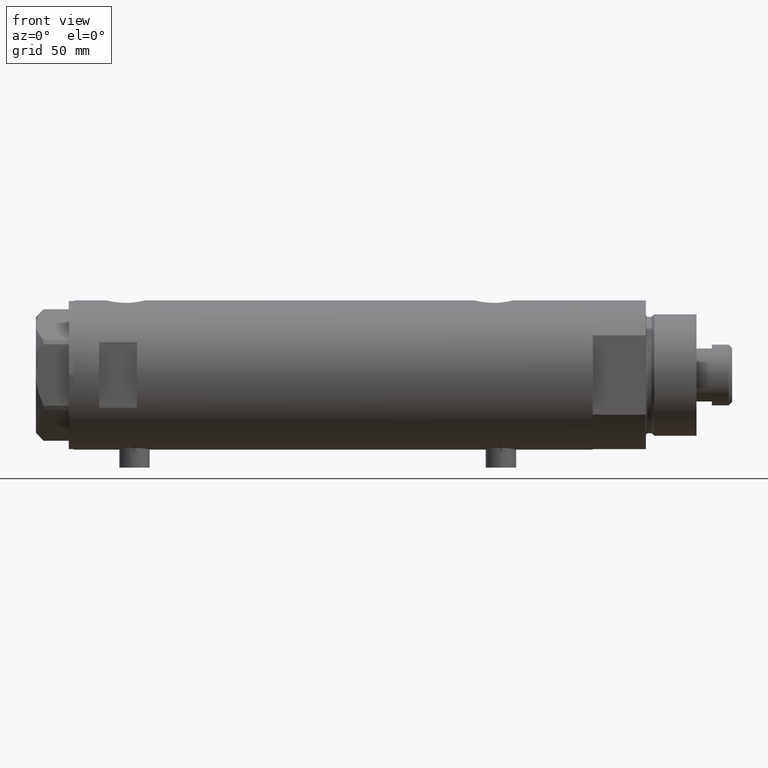
[diagram: clean part render]
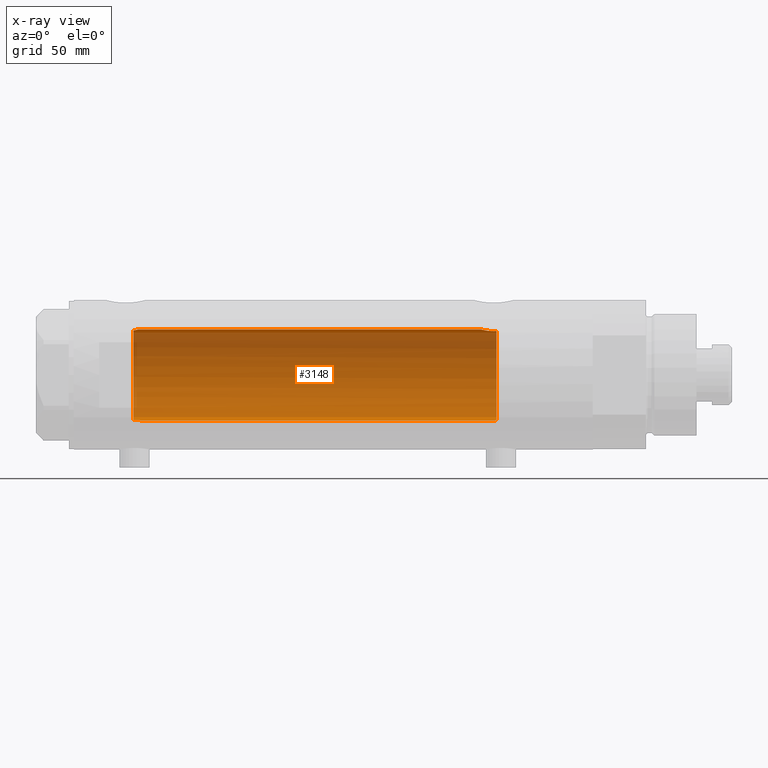
[diagram: x-ray — body ghosted, one internal face saturated and labeled with its STEP entity id]
A machine part, front view, then the same camera in x-ray: the body is ghosted and one INTERNAL B-rep face — a face not visible from any outside direction — is saturated and labeled: STEP entity #3148.
In plain terms, the highlighted cylindrical surface (partial cylindrical patch) has radius 18 mm, axis along (1, 0, -0).
Its self-contained STEP definition (entity closure, byte-faithful):
#122 = CARTESIAN_POINT ( 'NONE',  ( -18.00000000000000000, 0.000000000000000000, 102.5999999999999943 ) ) ;
#134 = ORIENTED_EDGE ( 'NONE', *, *, #2261, .F. ) ;
#192 = VECTOR ( 'NONE', #3447, 1000.000000000000000 ) ;
#230 = VERTEX_POINT ( 'NONE', #3043 ) ;
#302 = CARTESIAN_POINT ( 'NONE',  ( 17.41328271218090151, 4.558641711475907243, -61.69087254718660773 ) ) ;
#365 = CARTESIAN_POINT ( 'NONE',  ( 0.000000000000000000, 0.000000000000000000, 102.5999999999999943 ) ) ;
#612 = CARTESIAN_POINT ( 'NONE',  ( 18.00000000000000355, 0.1844036484100908535, -58.53499999999998238 ) ) ;
#626 = B_SPLINE_CURVE_WITH_KNOTS ( 'NONE', 3,
 ( #1143, #1478, #4745, #4073, #706, #4432, #3297, #2986, #2626, #4456, #3688, #3365, #2944, #3716, #4101, #775 ),
 .UNSPECIFIED., .F., .F.,
 ( 4, 2, 2, 2, 2, 2, 2, 4 ),
 ( 0.007825597788866827872, 0.008929372539743339957, 0.009481259915181604672, 0.01003314729061987112, 0.01058503466605813584, 0.01113692204149640055, 0.01168880941693466527, 0.01224069679237292999 ),
 .UNSPECIFIED. ) ;
#666 = CARTESIAN_POINT ( 'NONE',  ( 17.63589737371338373, 3.604488512479874007, -60.12742655266249869 ) ) ;
#688 = VERTEX_POINT ( 'NONE', #2546 ) ;
#692 = CARTESIAN_POINT ( 'NONE',  ( -17.98949107760678601, 0.6899666364176300082, -63.87303358989281321 ) ) ;
#706 = CARTESIAN_POINT ( 'NONE',  ( -17.94624864476198312, 1.397590066628585426, 76.51900161024215663 ) ) ;
#721 = CARTESIAN_POINT ( 'NONE',  ( 17.95540531162506426, 1.279032093992337193, 77.40250861430335760 ) ) ;
#725 = EDGE_LOOP ( 'NONE', ( #2578, #134, #2812, #2547, #1981, #4213, #3104, #1496 ) ) ;
#769 = EDGE_CURVE ( 'NONE', #1692, #4480, #3833, .T. ) ;
#775 = CARTESIAN_POINT ( 'NONE',  ( -17.83255450012700649, 2.449489742783172996, 79.10000000000000853 ) ) ;
#819 = VERTEX_POINT ( 'NONE', #3386 ) ;
#911 = VERTEX_POINT ( 'NONE', #2749 ) ;
#945 = DIRECTION ( 'NONE',  ( 0.000000000000000000, 0.000000000000000000, 1.000000000000000000 ) ) ;
#964 = AXIS2_PLACEMENT_3D ( 'NONE', #3946, #1348, #1730 ) ;
#966 = DIRECTION ( 'NONE',  ( 1.000000000000000000, 0.000000000000000000, 0.000000000000000000 ) ) ;
#983 = CARTESIAN_POINT ( 'NONE',  ( 18.00000000000000000, 0.000000000000000000, 77.23499999999998522 ) ) ;
#1004 = CARTESIAN_POINT ( 'NONE',  ( 17.98587882862718246, 0.7362002489460840460, -58.58746722239204985 ) ) ;
#1012 = CARTESIAN_POINT ( 'NONE',  ( -17.90642342847950275, 1.833030277983139333, -64.59999999999931219 ) ) ;
#1050 = CARTESIAN_POINT ( 'NONE',  ( -17.96336505771914460, 1.158437137172621645, -64.07804627005675968 ) ) ;
#1075 = EDGE_CURVE ( 'NONE', #2912, #1692, #2341, .T. ) ;
#1084 = CARTESIAN_POINT ( 'NONE',  ( 17.68814035493779002, 3.348626323852654796, 78.55183600219629625 ) ) ;
#1097 = B_SPLINE_CURVE_WITH_KNOTS ( 'NONE', 3,
 ( #4734, #1417, #2904, #4367, #1050, #692, #3653, #3747 ),
 .UNSPECIFIED., .F., .F.,
 ( 4, 2, 2, 4 ),
 ( 0.01360098575045320946, 0.01411306367951526558, 0.01462514160857732344, 0.01564929746670143743 ),
 .UNSPECIFIED. ) ;
#1143 = CARTESIAN_POINT ( 'NONE',  ( -18.00000000000000000, 3.061617490159550962E-16, 76.09999999999999432 ) ) ;
#1348 = DIRECTION ( 'NONE',  ( 0.000000000000000000, 0.000000000000000000, -1.000000000000000000 ) ) ;
#1376 = CARTESIAN_POINT ( 'NONE',  ( 17.34085862114804044, 4.826483754267692383, -62.76145238513610991 ) ) ;
#1399 = CARTESIAN_POINT ( 'NONE',  ( 17.99716691696285764, 0.3685254503903822032, -58.54545042928658916 ) ) ;
#1417 = CARTESIAN_POINT ( 'NONE',  ( -17.91832049203241439, 1.716810780632715083, -64.47468596615661340 ) ) ;
#1448 = CARTESIAN_POINT ( 'NONE',  ( 17.63704841537100521, 3.603891093161686321, 78.81145343596539021 ) ) ;
#1478 = CARTESIAN_POINT ( 'NONE',  ( -18.00000000000000711, 0.3684436523298857957, 76.10000000000000853 ) ) ;
#1496 = ORIENTED_EDGE ( 'NONE', *, *, #769, .F. ) ;
#1502 = DIRECTION ( 'NONE',  ( -1.000000000000000000, 0.000000000000000000, 0.000000000000000000 ) ) ;
#1692 = VERTEX_POINT ( 'NONE', #2941 ) ;
#1708 = CARTESIAN_POINT ( 'NONE',  ( 18.00000000000000355, 0.3728474842072360129, 77.23499999999999943 ) ) ;
#1728 = CARTESIAN_POINT ( 'NONE',  ( 17.97733715731491344, 0.9209699998971196955, -58.61935966604425374 ) ) ;
#1730 = DIRECTION ( 'NONE',  ( -1.000000000000000000, 0.000000000000000000, 0.000000000000000000 ) ) ;
#1784 = CARTESIAN_POINT ( 'NONE',  ( 17.32928165965088141, 4.867855194001447394, -63.31899018256648048 ) ) ;
#1791 = VERTEX_POINT ( 'NONE', #1012 ) ;
#1981 = ORIENTED_EDGE ( 'NONE', *, *, #2866, .T. ) ;
#2080 = CARTESIAN_POINT ( 'NONE',  ( 17.33118376015917050, 4.861110225087390546, -63.13112109378172931 ) ) ;
#2105 = CARTESIAN_POINT ( 'NONE',  ( 17.43128843254318028, 4.489613141718955092, -61.51700003713169451 ) ) ;
#2107 = CARTESIAN_POINT ( 'NONE',  ( 17.83158514913445103, 2.461498934476306744, 77.89965995681279765 ) ) ;
#2138 = CIRCLE ( 'NONE', #964, 18.00000000000000000 ) ;
#2193 = CYLINDRICAL_SURFACE ( 'NONE', #2924, 18.00000000000000000 ) ;
#2212 = EDGE_CURVE ( 'NONE', #1791, #4480, #2138, .T. ) ;
#2261 = EDGE_CURVE ( 'NONE', #911, #2912, #4672, .T. ) ;
#2341 = LINE ( 'NONE', #3818, #192 ) ;
#2441 = CARTESIAN_POINT ( 'NONE',  ( 17.61032289555864949, 3.726910670425183980, -60.26756985850230564 ) ) ;
#2491 = CARTESIAN_POINT ( 'NONE',  ( 17.53642083926970585, 4.065376572064633542, -60.70260027543616133 ) ) ;
#2517 = CARTESIAN_POINT ( 'NONE',  ( 17.98843015915092280, 0.7391836159806548512, 77.27731130524779246 ) ) ;
#2546 = CARTESIAN_POINT ( 'NONE',  ( -18.00000000000000000, 0.000000000000000000, -63.79999999999999716 ) ) ;
#2547 = ORIENTED_EDGE ( 'NONE', *, *, #4283, .F. ) ;
#2560 = FACE_OUTER_BOUND ( 'NONE', #725, .T. ) ;
#2570 = CARTESIAN_POINT ( 'NONE',  ( 17.76196254920472484, 2.921230608637953807, 78.20535341986153810 ) ) ;
#2578 = ORIENTED_EDGE ( 'NONE', *, *, #1075, .F. ) ;
#2626 = CARTESIAN_POINT ( 'NONE',  ( -17.87088460660653766, 2.153683778660669290, 77.31724841463827147 ) ) ;
#2749 = CARTESIAN_POINT ( 'NONE',  ( 17.58783030962033678, 3.829911878881830489, 79.10000000000000853 ) ) ;
#2807 = CARTESIAN_POINT ( 'NONE',  ( 18.00000000000000000, 5.958021437579254357E-16, -58.53499999999998238 ) ) ;
#2812 = ORIENTED_EDGE ( 'NONE', *, *, #2971, .T. ) ;
#2829 = CARTESIAN_POINT ( 'NONE',  ( 17.68656644271517209, 3.347025706529860756, -59.86453774950908979 ) ) ;
#2865 = CARTESIAN_POINT ( 'NONE',  ( 17.94167814235965253, 1.458276351914871150, 77.45504464479714102 ) ) ;
#2866 = EDGE_CURVE ( 'NONE', #819, #688, #4195, .T. ) ;
#2887 = CARTESIAN_POINT ( 'NONE',  ( 17.85293122918850628, 2.302201220737766452, 77.81031080804812916 ) ) ;
#2904 = CARTESIAN_POINT ( 'NONE',  ( -17.93028482699292780, 1.588885888720734663, -64.36224988169317385 ) ) ;
#2907 = CARTESIAN_POINT ( 'NONE',  ( 17.94405978035182869, 1.463580074031385347, -58.74553017623721729 ) ) ;
#2912 = VERTEX_POINT ( 'NONE', #3865 ) ;
#2924 = AXIS2_PLACEMENT_3D ( 'NONE', #365, #4081, #1502 ) ;
#2941 = CARTESIAN_POINT ( 'NONE',  ( 18.00000000000000000, 5.958021437579254357E-16, -58.53499999999998238 ) ) ;
#2944 = CARTESIAN_POINT ( 'NONE',  ( -17.82614870471583401, 2.495683684402662639, 78.36291490437702123 ) ) ;
#2971 = EDGE_CURVE ( 'NONE', #911, #230, #3375, .T. ) ;
#2986 = CARTESIAN_POINT ( 'NONE',  ( -17.88283752013080985, 2.053809615874002681, 77.16247768058087786 ) ) ;
#2992 = AXIS2_PLACEMENT_3D ( 'NONE', #4727, #945, #966 ) ;
#3043 = CARTESIAN_POINT ( 'NONE',  ( -17.83255450012700649, 2.449489742783172996, 79.10000000000000853 ) ) ;
#3104 = ORIENTED_EDGE ( 'NONE', *, *, #2212, .T. ) ;
#3148 = ADVANCED_FACE ( 'NONE', ( #2560 ), #2193, .F. ) ;
#3219 = VECTOR ( 'NONE', #4585, 1000.000000000000000 ) ;
#3297 = CARTESIAN_POINT ( 'NONE',  ( -17.90830209998921063, 1.818440982043824983, 76.87434744171716261 ) ) ;
#3365 = CARTESIAN_POINT ( 'NONE',  ( -17.82958311517957739, 2.471426257451372344, 78.18046645260449168 ) ) ;
#3375 = CIRCLE ( 'NONE', #2992, 18.00000000000000000 ) ;
#3386 = CARTESIAN_POINT ( 'NONE',  ( -18.00000000000000000, 3.061617490159550962E-16, 76.09999999999999432 ) ) ;
#3447 = DIRECTION ( 'NONE',  ( -0.000000000000000000, -0.000000000000000000, -1.000000000000000000 ) ) ;
#3554 = CARTESIAN_POINT ( 'NONE',  ( 17.37157951943346035, 4.714681855650494136, -64.59999999999999432 ) ) ;
#3558 = EDGE_CURVE ( 'NONE', #1791, #688, #1097, .T. ) ;
#3577 = CARTESIAN_POINT ( 'NONE',  ( 17.35631194664785681, 4.771042759406569189, -62.39667763205950024 ) ) ;
#3653 = CARTESIAN_POINT ( 'NONE',  ( -17.99999999999999645, 0.3463326441765492425, -63.79999999999998295 ) ) ;
#3688 = CARTESIAN_POINT ( 'NONE',  ( -17.84158955897572696, 2.383204526717101146, 77.82263758307628621 ) ) ;
#3716 = CARTESIAN_POINT ( 'NONE',  ( -17.82508408272472877, 2.503276281002373427, 78.73510831259082465 ) ) ;
#3747 = CARTESIAN_POINT ( 'NONE',  ( -18.00000000000000000, 0.000000000000000000, -63.79999999999999716 ) ) ;
#3818 = CARTESIAN_POINT ( 'NONE',  ( 18.00000000000000000, 2.204364238465235428E-15, 102.5999999999999943 ) ) ;
#3833 = B_SPLINE_CURVE_WITH_KNOTS ( 'NONE', 3,
 ( #2807, #612, #1399, #1004, #1728, #2907, #4323, #3987, #4346, #4297, #4660, #3917, #2829, #666, #2441, #2491, #3943, #2105, #302, #3964, #3577, #1376, #2080, #1784, #4689, #4369, #3554 ),
 .UNSPECIFIED., .F., .F.,
 ( 4, 2, 2, 2, 2, 2, 2, 2, 2, 2, 1, 2, 2, 4 ),
 ( 0.01528157848519460030, 0.01583467956029640383, 0.01638778063539820737, 0.01749398278560182138, 0.01804708386070362838, 0.01860018493580543539, 0.01915328601090724239, 0.01970638708600904940, 0.02081258923621265994, 0.02136569031131446000, 0.02191879138641625313, 0.02247189246151805320, 0.02302499353661984632, 0.02413119568682348115 ),
 .UNSPECIFIED. ) ;
#3865 = CARTESIAN_POINT ( 'NONE',  ( 18.00000000000000000, 0.000000000000000000, 77.23499999999998522 ) ) ;
#3917 = CARTESIAN_POINT ( 'NONE',  ( 17.71174132276681945, 3.211689381115077957, -59.74121359250869290 ) ) ;
#3943 = CARTESIAN_POINT ( 'NONE',  ( 17.49030773641653269, 4.256160900234554845, -61.01469509681786718 ) ) ;
#3946 = CARTESIAN_POINT ( 'NONE',  ( 0.000000000000000000, 0.000000000000000000, -64.59999999999999432 ) ) ;
#3964 = CARTESIAN_POINT ( 'NONE',  ( 17.38237957915197285, 4.675094569549006707, -62.04138980228256628 ) ) ;
#3987 = CARTESIAN_POINT ( 'NONE',  ( 17.85236636886078543, 2.306694554785104323, -59.11264586133006560 ) ) ;
#4044 = CARTESIAN_POINT ( 'NONE',  ( 17.89217382667230893, 1.974183297225227562, 77.64981302266166097 ) ) ;
#4073 = CARTESIAN_POINT ( 'NONE',  ( -17.95816418424195504, 1.237771781631975099, 76.42014148713401767 ) ) ;
#4081 = DIRECTION ( 'NONE',  ( -0.000000000000000000, -0.000000000000000000, -1.000000000000000000 ) ) ;
#4101 = CARTESIAN_POINT ( 'NONE',  ( -17.82749843654113420, 2.486298441295534012, 78.91967494109754000 ) ) ;
#4195 = LINE ( 'NONE', #122, #3219 ) ;
#4213 = ORIENTED_EDGE ( 'NONE', *, *, #3558, .F. ) ;
#4278 = CARTESIAN_POINT ( 'NONE',  ( 17.37157951943346035, 4.714681855650494136, -64.59999999999999432 ) ) ;
#4283 = EDGE_CURVE ( 'NONE', #819, #230, #626, .T. ) ;
#4297 = CARTESIAN_POINT ( 'NONE',  ( 17.78478726694684653, 2.779555353823087938, -59.40297143050465678 ) ) ;
#4323 = CARTESIAN_POINT ( 'NONE',  ( 17.91189082287940693, 1.809824880389075297, -58.86912370284668583 ) ) ;
#4346 = CARTESIAN_POINT ( 'NONE',  ( 17.83051055968252285, 2.469307448774139324, -59.20420614498792133 ) ) ;
#4348 = CARTESIAN_POINT ( 'NONE',  ( 17.91007218376325838, 1.805463612197659939, 77.57866376881658255 ) ) ;
#4367 = CARTESIAN_POINT ( 'NONE',  ( -17.95286768021396284, 1.309280107997278897, -64.16336257470373994 ) ) ;
#4369 = CARTESIAN_POINT ( 'NONE',  ( 17.34671983132638573, 4.806279138776327287, -64.24012329268312271 ) ) ;
#4432 = CARTESIAN_POINT ( 'NONE',  ( -17.92135699193089238, 1.687027558082471623, 76.74588287565644862 ) ) ;
#4456 = CARTESIAN_POINT ( 'NONE',  ( -17.85029215802977376, 2.318176074868579128, 77.64613149013025861 ) ) ;
#4480 = VERTEX_POINT ( 'NONE', #4278 ) ;
#4585 = DIRECTION ( 'NONE',  ( -0.000000000000000000, -0.000000000000000000, -1.000000000000000000 ) ) ;
#4660 = CARTESIAN_POINT ( 'NONE',  ( 17.76085061188611292, 2.927954048074874027, -59.51043039029092796 ) ) ;
#4662 = CARTESIAN_POINT ( 'NONE',  ( 17.78617492856930227, 2.770629413254904971, 78.09682049650069757 ) ) ;
#4672 = B_SPLINE_CURVE_WITH_KNOTS ( 'NONE', 3,
 ( #4760, #1448, #1084, #2570, #4662, #2107, #2887, #4044, #4348, #2865, #721, #2517, #1708, #983 ),
 .UNSPECIFIED., .F., .F.,
 ( 4, 2, 2, 2, 2, 2, 4 ),
 ( 0.02614985543880323990, 0.02725214354003939812, 0.02780328759065749458, 0.02835443164127558757, 0.02890557569189368056, 0.02945671974251177355, 0.03055900784374796994 ),
 .UNSPECIFIED. ) ;
#4689 = CARTESIAN_POINT ( 'NONE',  ( 17.33262691996381477, 4.855935766715060886, -63.87488940890202826 ) ) ;
#4727 = CARTESIAN_POINT ( 'NONE',  ( 0.000000000000000000, 0.000000000000000000, 79.10000000000000853 ) ) ;
#4734 = CARTESIAN_POINT ( 'NONE',  ( -17.90642342847950275, 1.833030277983139333, -64.59999999999931219 ) ) ;
#4745 = CARTESIAN_POINT ( 'NONE',  ( -17.98790814410162398, 0.7389993272946852043, 76.18352974933836208 ) ) ;
#4760 = CARTESIAN_POINT ( 'NONE',  ( 17.58783030962033678, 3.829911878881830489, 79.10000000000000853 ) ) ;